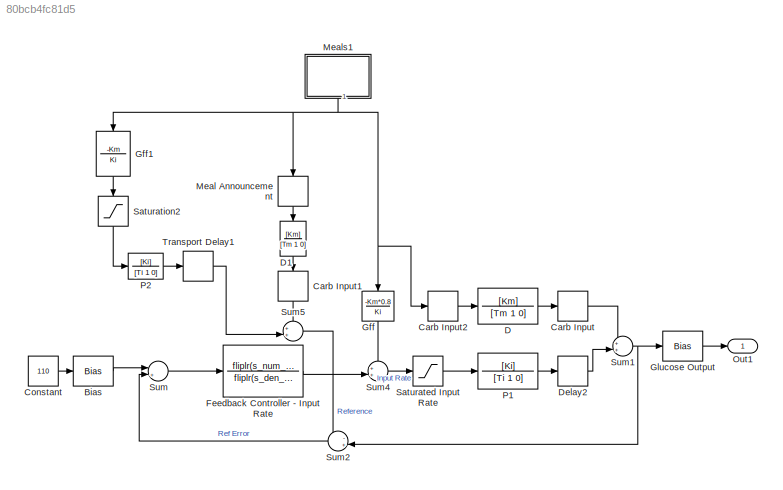
MODEL slx_80bcb4fc81d5
KIND model
CONFIG AbsTol = auto
CONFIG EnableMultiTasking = off
CONFIG FixedStep = auto
CONFIG MaxStep = auto
CONFIG MinStep = auto
CONFIG RelTol = 1e-3
CONFIG SampleTimeConstraint = Unconstrained
CONFIG Solver = VariableStepAuto
CONFIG SolverName = VariableStepAuto
CONFIG StartTime = 0.0
CONFIG StopTime = 48*60
BLOCK [Bias] Bias
  Bias = -110
  SaturateOnIntegerOverflow = off
BLOCK [TransportDelay] Carb Input
  DelayTime = Tdm
  Ports = [1, 1]
BLOCK [TransportDelay] Carb Input1
  DelayTime = Tdm
  Ports = [1, 1]
BLOCK [TransportDelay] Carb Input2
  DelayTime = 10
  Ports = [1, 1]
BLOCK [Constant] Constant
  Value = 110
BLOCK [TransferFcn] D
  Denominator = [Tm 1 0]
  Numerator = [Km]
BLOCK [TransferFcn] D1
  Denominator = [Tm 1 0]
  Numerator = [Km]
BLOCK [TransportDelay] Delay2
  DelayTime = Tdi
  Ports = [1, 1]
BLOCK [TransferFcn] Feedback Controller - Input Rate
  Denominator = fliplr(s_den_c)
  Numerator = fliplr(s_num_c)
BLOCK [TransferFcn] Gff
  Denominator = Ki
  Numerator = -Km*0.8
BLOCK [TransferFcn] Gff1
  Denominator = Ki
  Numerator = -Km
BLOCK [Bias] Glucose Output
  Bias = +110
  SaturateOnIntegerOverflow = off
BLOCK [TransportDelay] Meal Announcement
  DelayTime = 10
  Ports = [1, 1]
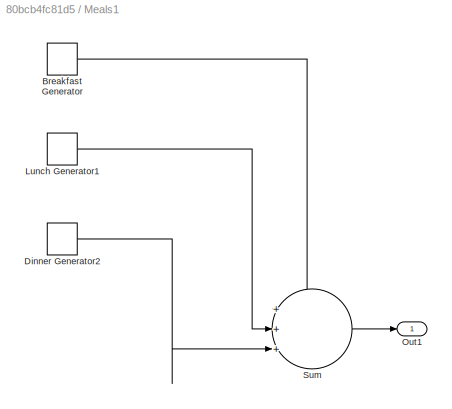
BLOCK [SubSystem] Meals1
  Ports = [0, 1]
  RequestExecContextInheritance = off
  Variant = off
BLOCK [DiscretePulseGenerator] Meals1/Breakfast Generator
  Amplitude = 25/10*1.25
  Period = 1440
  PhaseDelay = 60
  Ports = [0, 1]
  PulseWidth = 10
BLOCK [DiscretePulseGenerator] Meals1/Dinner Generator2
  Amplitude = 3
  Period = 1440
  PhaseDelay = 720
  Ports = [0, 1]
  PulseWidth = 20
BLOCK [DiscretePulseGenerator] Meals1/Lunch Generator1
  Amplitude = 40/15*1.25
  Period = 1440
  PhaseDelay = 420
  Ports = [0, 1]
  PulseWidth = 15
BLOCK [Outport] Meals1/Out1
  IconDisplay = Port number
BLOCK [Sum] Meals1/Sum
  IconShape = round
  InputSameDT = off
  Inputs = +++
  OutDataTypeStr = Inherit: Inherit via internal rule
  Ports = [3, 1]
  SaturateOnIntegerOverflow = off
BLOCK [Outport] Out1
  IconDisplay = Port number
BLOCK [TransferFcn] P1
  Denominator = [Ti 1 0]
  Numerator = [Ki]
BLOCK [TransferFcn] P2
  Denominator = [Ti 1 0]
  Numerator = [Ki]
BLOCK [Saturate] Saturated Input Rate
  InputPortMap = u0
  LowerLimit = 0
  Ports = [1, 1]
  UpperLimit = 166
BLOCK [Saturate] Saturation2
  InputPortMap = u0
  LowerLimit = 0
  Ports = [1, 1]
  UpperLimit = 166
BLOCK [Sum] Sum
  IconShape = round
  InputSameDT = off
  Inputs = |+-
  OutDataTypeStr = Inherit: Inherit via internal rule
  Ports = [2, 1]
  SaturateOnIntegerOverflow = off
BLOCK [Sum] Sum1
  IconShape = round
  InputSameDT = off
  Inputs = ++|
  OutDataTypeStr = Inherit: Inherit via internal rule
  Ports = [2, 1]
  SaturateOnIntegerOverflow = off
BLOCK [Sum] Sum2
  IconShape = round
  InputSameDT = off
  Inputs = -+|
  OutDataTypeStr = Inherit: Inherit via internal rule
  Ports = [2, 1]
  SaturateOnIntegerOverflow = off
BLOCK [Sum] Sum4
  IconShape = round
  InputSameDT = off
  Inputs = ++|
  OutDataTypeStr = Inherit: Inherit via internal rule
  Ports = [2, 1]
  SaturateOnIntegerOverflow = off
BLOCK [Sum] Sum5
  IconShape = round
  InputSameDT = off
  Inputs = ++|
  OutDataTypeStr = Inherit: Inherit via internal rule
  Ports = [2, 1]
  SaturateOnIntegerOverflow = off
BLOCK [TransportDelay] Transport Delay1
  DelayTime = Tdi
  Ports = [1, 1]
LINE Bias:1 -> Sum:1
LINE Carb Input1:1 -> Sum5:1
LINE Carb Input2:1 -> D:1
LINE Carb Input:1 -> Sum1:1
LINE Constant:1 -> Bias:1
LINE D1:1 -> Carb Input1:1
LINE D:1 -> Carb Input:1
LINE Delay2:1 -> Sum1:2
LINE Feedback Controller - Input Rate:1 -> Sum4:2
LINE Gff1:1 -> Saturation2:1
LINE Gff:1 -> Sum4:1
LINE Glucose Output:1 -> Out1:1
LINE Meal Announcement:1 -> D1:1
LINE Meals1/Breakfast Generator:1 -> Meals1/Sum:1
LINE Meals1/Dinner Generator2:1 -> Meals1/Sum:3
LINE Meals1/Lunch Generator1:1 -> Meals1/Sum:2
LINE Meals1/Sum:1 -> Meals1/Out1:1
NET Meals1:1 -> Carb Input2:1, Gff1:1, Gff:1, Meal Announcement:1
LINE P1:1 -> Delay2:1
LINE P2:1 -> Transport Delay1:1
LINE Saturated Input Rate:1 -> P1:1
LINE Saturation2:1 -> P2:1
NET Sum1:1 -> Glucose Output:1, Sum2:2
LINE Sum2:1 -> Sum:2
LINE Sum4:1 -> Saturated Input Rate:1
LINE Sum5:1 -> Sum2:1
LINE Sum:1 -> Feedback Controller - Input Rate:1
LINE Transport Delay1:1 -> Sum5:2
note: NET lines group one-source signal fan-out (src -> all destinations, sorted); 1:1 wires keep LINE
